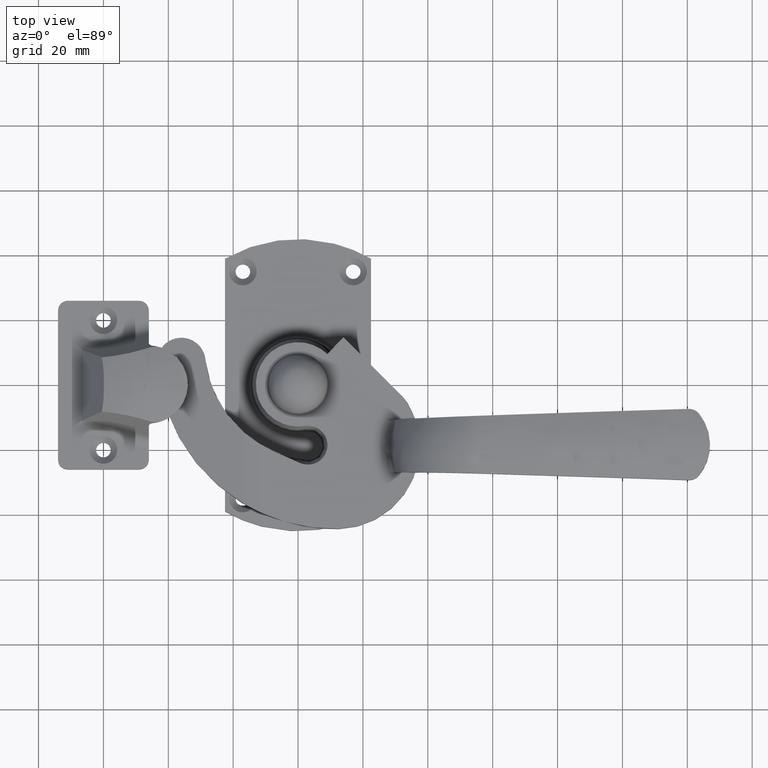
[diagram: clean part render]
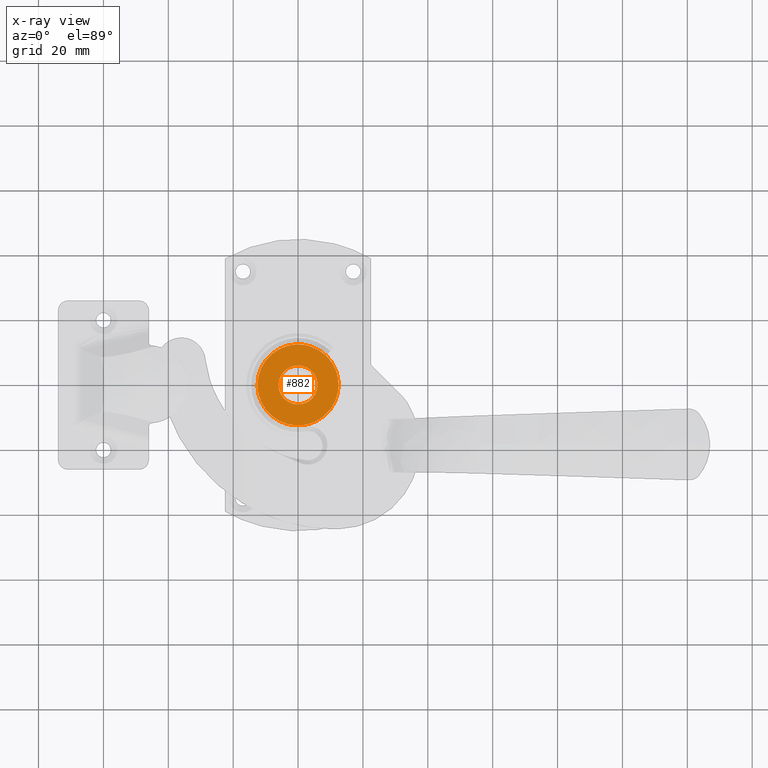
[diagram: x-ray — body ghosted, one internal face saturated and labeled with its STEP entity id]
A machine part, top view, then the same camera in x-ray: the body is ghosted and one INTERNAL B-rep face — a face not visible from any outside direction — is saturated and labeled: STEP entity #882.
In plain terms, the highlighted face is a freeform B-spline surface patch.
Its self-contained STEP definition (entity closure, byte-faithful):
#515=CARTESIAN_POINT('',(-0.708205408382234,5.958057158129497,6.999999999999920));
#516=VERTEX_POINT('',#515);
#517=CARTESIAN_POINT('',(6.0,0.0,6.999999999999920));
#518=VERTEX_POINT('',#517);
#519=CARTESIAN_POINT('',(-0.708205408382234,5.958057158129497,6.999999999999920));
#520=CARTESIAN_POINT('',(-0.355344718357814,6.000000000000001,6.999999999999920));
#521=CARTESIAN_POINT('',(0.0,6.0,6.999999999999920));
#522=CARTESIAN_POINT('',(6.0,6.0,6.999999999999920));
#523=CARTESIAN_POINT('',(6.0,0.0,6.999999999999920));
#531=(BOUNDED_CURVE()B_SPLINE_CURVE(2,(#519,#520,#521,#522,#523),.UNSPECIFIED.,.F.,.U.)B_SPLINE_CURVE_WITH_KNOTS((3,2,3),(0.229562473490587,0.250000000000000,0.500000000000000),.UNSPECIFIED.)CURVE()GEOMETRIC_REPRESENTATION_ITEM()RATIONAL_B_SPLINE_CURVE((0.956026754138773,0.976055948304291,1.0,0.707106781186548,1.0))REPRESENTATION_ITEM(''));
#532=EDGE_CURVE('',#516,#518,#531,.T.);
#534=CARTESIAN_POINT('',(0.366283415853540,-5.988809268895549,6.999999999997439));
#535=VERTEX_POINT('',#534);
#536=CARTESIAN_POINT('',(6.0,0.0,6.999999999999920));
#537=CARTESIAN_POINT('',(6.0,-5.644243786558566,6.999999999999921));
#538=CARTESIAN_POINT('',(0.366283415853540,-5.988809268895549,6.999999999997439));
#546=(BOUNDED_CURVE()B_SPLINE_CURVE(2,(#536,#537,#538),.UNSPECIFIED.,.F.,.U.)B_SPLINE_CURVE_WITH_KNOTS((3,3),(0.500000000000000,0.739333187587287),.UNSPECIFIED.)CURVE()GEOMETRIC_REPRESENTATION_ITEM()RATIONAL_B_SPLINE_CURVE((1.0,0.719603729274702,0.976072524631593))REPRESENTATION_ITEM(''));
#547=EDGE_CURVE('',#518,#535,#546,.T.);
#614=CARTESIAN_POINT('',(-6.0,0.0,6.999999999999920));
#615=VERTEX_POINT('',#614);
#616=CARTESIAN_POINT('',(-6.0,0.0,6.999999999999920));
#617=CARTESIAN_POINT('',(-6.0,5.329047154912537,6.999999999999921));
#618=CARTESIAN_POINT('',(-0.708205408382234,5.958057158129497,6.999999999999920));
#626=(BOUNDED_CURVE()B_SPLINE_CURVE(2,(#616,#617,#618),.UNSPECIFIED.,.F.,.U.)B_SPLINE_CURVE_WITH_KNOTS((3,3),(0.0,0.229562473490587),.UNSPECIFIED.)CURVE()GEOMETRIC_REPRESENTATION_ITEM()RATIONAL_B_SPLINE_CURVE((1.0,0.731050832882256,0.956026754138773))REPRESENTATION_ITEM(''));
#627=EDGE_CURVE('',#615,#516,#626,.T.);
#661=CARTESIAN_POINT('',(0.366283415853540,-5.988809268895549,6.999999999997439));
#662=CARTESIAN_POINT('',(0.183312658148963,-6.0,6.999999999999920));
#663=CARTESIAN_POINT('',(0.0,-6.0,6.999999999999920));
#664=CARTESIAN_POINT('',(-6.0,-6.0,6.999999999999920));
#665=CARTESIAN_POINT('',(-6.0,0.0,6.999999999999920));
#673=(BOUNDED_CURVE()B_SPLINE_CURVE(2,(#661,#662,#663,#664,#665),.UNSPECIFIED.,.F.,.U.)B_SPLINE_CURVE_WITH_KNOTS((3,2,3),(0.739333187587287,0.750000000000000,1.0),.UNSPECIFIED.)CURVE()GEOMETRIC_REPRESENTATION_ITEM()RATIONAL_B_SPLINE_CURVE((0.976072524631593,0.987503051911845,1.0,0.707106781186548,1.0))REPRESENTATION_ITEM(''));
#674=EDGE_CURVE('',#535,#615,#673,.T.);
#701=CARTESIAN_POINT('',(-1.475427933337073,12.412619079530661,6.999999999999920));
#702=VERTEX_POINT('',#701);
#703=CARTESIAN_POINT('',(12.500000000000000,0.0,6.999999999999920));
#704=VERTEX_POINT('',#703);
#705=CARTESIAN_POINT('',(-1.475427933337073,12.412619079530662,6.999999999999920));
#706=CARTESIAN_POINT('',(-0.740301495777818,12.499999999999998,6.999999999999919));
#707=CARTESIAN_POINT('',(0.0,12.500000000000000,6.999999999999920));
#708=CARTESIAN_POINT('',(12.499999999999998,12.499999999999998,6.999999999999920));
#709=CARTESIAN_POINT('',(12.500000000000000,0.0,6.999999999999920));
#717=(BOUNDED_CURVE()B_SPLINE_CURVE(2,(#705,#706,#707,#708,#709),.UNSPECIFIED.,.F.,.U.)B_SPLINE_CURVE_WITH_KNOTS((3,2,3),(0.229562473512170,0.250000000000000,0.500000000000000),.UNSPECIFIED.)CURVE()GEOMETRIC_REPRESENTATION_ITEM()RATIONAL_B_SPLINE_CURVE((0.956026754181076,0.976055948329577,1.0,0.707106781186547,1.0))REPRESENTATION_ITEM(''));
#718=EDGE_CURVE('',#702,#704,#717,.T.);
#759=CARTESIAN_POINT('',(0.763106744415691,-12.476684980259270,6.999999999999920));
#760=VERTEX_POINT('',#759);
#766=CARTESIAN_POINT('',(12.500000000000000,0.0,6.999999999999920));
#767=CARTESIAN_POINT('',(12.499999999999998,-11.758825835886912,6.999999999999920));
#768=CARTESIAN_POINT('',(0.763106744415691,-12.476684980259273,6.999999999999920));
#776=(BOUNDED_CURVE()B_SPLINE_CURVE(2,(#766,#767,#768),.UNSPECIFIED.,.F.,.U.)B_SPLINE_CURVE_WITH_KNOTS((3,3),(0.500000000000000,0.739332962235608),.UNSPECIFIED.)CURVE()GEOMETRIC_REPRESENTATION_ITEM()RATIONAL_B_SPLINE_CURVE((1.0,0.719603993290618,0.976072041659570))REPRESENTATION_ITEM(''));
#777=EDGE_CURVE('',#704,#760,#776,.T.);
#800=CARTESIAN_POINT('',(-12.500000000000000,0.0,6.999999999999920));
#801=VERTEX_POINT('',#800);
#802=CARTESIAN_POINT('',(-12.500000000000000,0.0,6.999999999999920));
#803=CARTESIAN_POINT('',(-12.499999999999998,11.102181574162246,6.999999999999920));
#804=CARTESIAN_POINT('',(-1.475427933337073,12.412619079530661,6.999999999999920));
#812=(BOUNDED_CURVE()B_SPLINE_CURVE(2,(#802,#803,#804),.UNSPECIFIED.,.F.,.U.)B_SPLINE_CURVE_WITH_KNOTS((3,3),(0.0,0.229562473512170),.UNSPECIFIED.)CURVE()GEOMETRIC_REPRESENTATION_ITEM()RATIONAL_B_SPLINE_CURVE((1.0,0.731050832856971,0.956026754181076))REPRESENTATION_ITEM(''));
#813=EDGE_CURVE('',#801,#702,#812,.T.);
#815=CARTESIAN_POINT('',(0.763106744415691,-12.476684980259266,6.999999999999920));
#816=CARTESIAN_POINT('',(0.381909541462985,-12.500000000000000,6.999999999999920));
#817=CARTESIAN_POINT('',(0.0,-12.500000000000000,6.999999999999920));
#818=CARTESIAN_POINT('',(-12.499999999999998,-12.499999999999998,6.999999999999920));
#819=CARTESIAN_POINT('',(-12.500000000000000,0.0,6.999999999999920));
#827=(BOUNDED_CURVE()B_SPLINE_CURVE(2,(#815,#816,#817,#818,#819),.UNSPECIFIED.,.F.,.U.)B_SPLINE_CURVE_WITH_KNOTS((3,2,3),(0.739332962235607,0.750000000000000,1.0),.UNSPECIFIED.)CURVE()GEOMETRIC_REPRESENTATION_ITEM()RATIONAL_B_SPLINE_CURVE((0.976072041659569,0.987502787895929,1.0,0.707106781186547,1.0))REPRESENTATION_ITEM(''));
#828=EDGE_CURVE('',#760,#801,#827,.T.);
#865=CARTESIAN_POINT('',(-13.748749951545150,-13.748446416701929,6.999999999999920));
#866=CARTESIAN_POINT('',(13.748750622097401,-13.748446416701929,6.999999999999920));
#867=CARTESIAN_POINT('',(-13.748749951545150,13.748522636141439,6.999999999999920));
#868=CARTESIAN_POINT('',(13.748750622097401,13.748522636141439,6.999999999999920));
#869=B_SPLINE_SURFACE_WITH_KNOTS('',1,1,((#865,#867),(#866,#868)),.UNSPECIFIED.,.F.,.F.,.U.,(2,2),(2,2),(0.0,27.497500573642551),(0.0,27.496969052843369),.UNSPECIFIED.);
#870=ORIENTED_EDGE('',*,*,#813,.T.);
#871=ORIENTED_EDGE('',*,*,#718,.T.);
#872=ORIENTED_EDGE('',*,*,#777,.T.);
#873=ORIENTED_EDGE('',*,*,#828,.T.);
#874=EDGE_LOOP('',(#870,#871,#872,#873));
#875=FACE_OUTER_BOUND('',#874,.T.);
#876=ORIENTED_EDGE('',*,*,#547,.F.);
#877=ORIENTED_EDGE('',*,*,#532,.F.);
#878=ORIENTED_EDGE('',*,*,#627,.F.);
#879=ORIENTED_EDGE('',*,*,#674,.F.);
#880=EDGE_LOOP('',(#876,#877,#878,#879));
#881=FACE_BOUND('',#880,.T.);
#882=ADVANCED_FACE('',(#875,#881),#869,.F.);